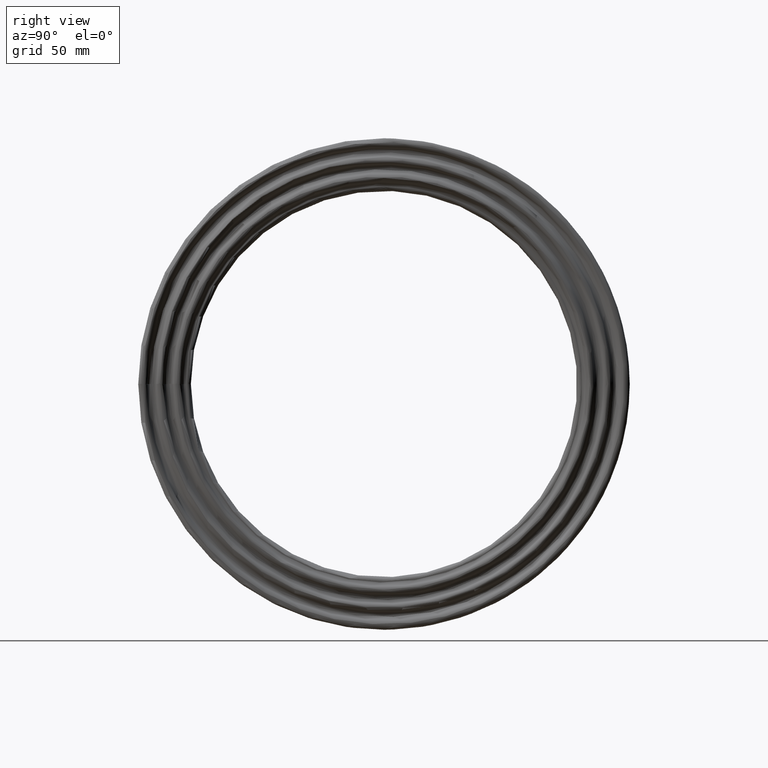
[diagram: clean part render]
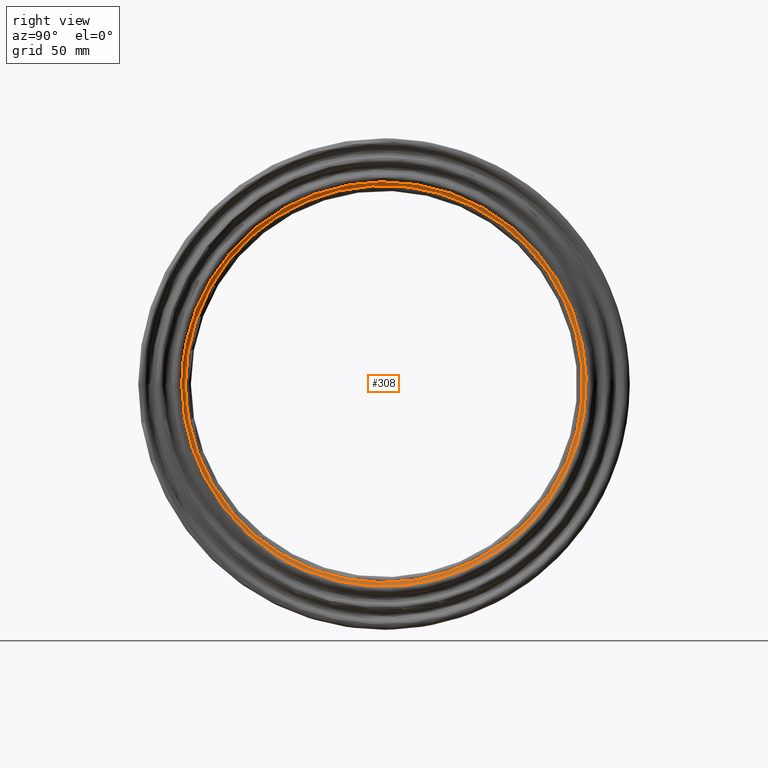
[diagram: same view with one face highlighted and labeled with its STEP entity id]
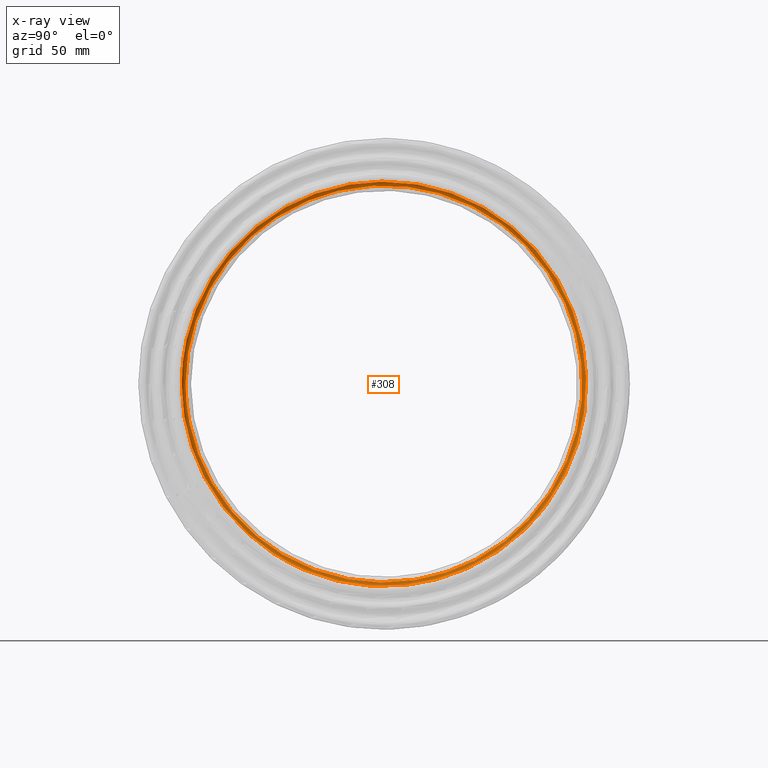
[diagram: x-ray of the same camera — body ghosted, the highlighted face saturated]
A machine part, right view. The second image highlights one B-rep face of the part: STEP entity #308.
The next image is the same camera in x-ray: the body ghosted, the highlighted face saturated — about 0% of this face is hidden behind the body in this view.
In plain terms, the highlighted face is a freeform B-spline surface patch.
Its self-contained STEP definition (entity closure, byte-faithful):
#15=B_SPLINE_SURFACE_WITH_KNOTS('',3,3,((#544,#545,#546,#547,#548,#549,
#550,#551,#552,#553,#554,#555,#556,#557,#558,#559,#560,#561,#562,#563,#564,
#565,#566,#567,#568,#569,#570,#571,#572,#573,#574,#575,#576,#577,#578,#579,
#580,#581,#582,#583,#584,#585,#586,#587,#588,#589,#590,#591,#592,#593,#594,
#595,#596,#597,#598,#599,#600,#601),(#602,#603,#604,#605,#606,#607,#608,
#609,#610,#611,#612,#613,#614,#615,#616,#617,#618,#619,#620,#621,#622,#623,
#624,#625,#626,#627,#628,#629,#630,#631,#632,#633,#634,#635,#636,#637,#638,
#639,#640,#641,#642,#643,#644,#645,#646,#647,#648,#649,#650,#651,#652,#653,
#654,#655,#656,#657,#658,#659),(#660,#661,#662,#663,#664,#665,#666,#667,
#668,#669,#670,#671,#672,#673,#674,#675,#676,#677,#678,#679,#680,#681,#682,
#683,#684,#685,#686,#687,#688,#689,#690,#691,#692,#693,#694,#695,#696,#697,
#698,#699,#700,#701,#702,#703,#704,#705,#706,#707,#708,#709,#710,#711,#712,
#713,#714,#715,#716,#717),(#718,#719,#720,#721,#722,#723,#724,#725,#726,
#727,#728,#729,#730,#731,#732,#733,#734,#735,#736,#737,#738,#739,#740,#741,
#742,#743,#744,#745,#746,#747,#748,#749,#750,#751,#752,#753,#754,#755,#756,
#757,#758,#759,#760,#761,#762,#763,#764,#765,#766,#767,#768,#769,#770,#771,
#772,#773,#774,#775),(#776,#777,#778,#779,#780,#781,#782,#783,#784,#785,
#786,#787,#788,#789,#790,#791,#792,#793,#794,#795,#796,#797,#798,#799,#800,
#801,#802,#803,#804,#805,#806,#807,#808,#809,#810,#811,#812,#813,#814,#815,
#816,#817,#818,#819,#820,#821,#822,#823,#824,#825,#826,#827,#828,#829,#830,
#831,#832,#833)),.UNSPECIFIED.,.F.,.T.,.F.,(4,1,4),(4,1,1,1,1,1,1,1,1,1,
1,1,1,1,1,1,1,1,1,1,1,1,1,1,1,1,1,1,1,1,1,1,1,1,1,1,1,1,1,1,1,1,1,1,1,1,
1,1,1,1,1,1,1,1,1,4),(0.,0.571428571428571,1.),(34.3046376185448,35.5298032477785,
36.7549688770123,37.980134506246,39.2053001354798,41.6556313939473,42.880797023181,
44.1059626524147,45.7395168247264,47.3730709970381,50.6401793416614,51.5590535635867,
52.273733513973,53.9072876862847,54.7240647724405,55.5408418585964,58.8079502032197,
60.4415043755313,62.075058547843,63.7086127201546,64.3211955347715,66.9757210647779,
68.4050809655506,69.0176637801675,70.2428294094013,71.8763835817129,73.5099377540246,
74.4288119759499,75.5008319015294,75.9602690124921,78.4106002709595,80.860931529427,
81.3203686403897,82.0860971586608,83.3112627878945,84.5364284171283,85.761594046362,
86.2210311573247,86.6804682682873,88.2119253048295,89.4370909340632,90.662256563297,
91.2748393779139,92.1937135998392,93.1125878217645,93.6485977845542,94.3377534509982,
95.562919080232,96.4817933021573,98.0132503386994,98.3195417460079,99.2384159679332,
100.463581597167,101.688747226401,101.995038633709,102.913912855634),
 .UNSPECIFIED.);
#24=B_SPLINE_CURVE_WITH_KNOTS('',3,(#483,#484,#485,#486,#487,#488,#489,
#490,#491,#492,#493,#494,#495,#496,#497,#498,#499,#500,#501,#502,#503,#504,
#505,#506,#507,#508,#509,#510,#511,#512,#513,#514,#515,#516,#517,#518,#519,
#520,#521,#522,#523,#524,#525,#526,#527,#528,#529,#530,#531,#532,#533,#534,
#535,#536,#537,#538,#539,#540),.UNSPECIFIED.,.T.,.F.,(4,1,1,1,1,1,1,1,1,
1,1,1,1,1,1,1,1,1,1,1,1,1,1,1,1,1,1,1,1,1,1,1,1,1,1,1,1,1,1,1,1,1,1,1,1,
1,1,1,1,1,1,1,1,1,1,4),(-102.913912855634,-101.995038633709,-101.688747226401,
-100.463581597167,-99.2384159679332,-98.3195417460079,-98.0132503386994,
-96.4817933021573,-95.562919080232,-94.3377534509982,-93.6485977845542,
-93.1125878217645,-92.1937135998392,-91.2748393779139,-90.662256563297,
-89.4370909340632,-88.2119253048295,-86.6804682682873,-86.2210311573247,
-85.761594046362,-84.5364284171283,-83.3112627878945,-82.0860971586608,
-81.3203686403897,-80.860931529427,-78.4106002709595,-75.9602690124921,
-75.5008319015294,-74.4288119759499,-73.5099377540246,-71.8763835817129,
-70.2428294094013,-69.0176637801675,-68.4050809655506,-66.9757210647779,
-64.3211955347715,-63.7086127201546,-62.075058547843,-60.4415043755313,
-58.8079502032197,-55.5408418585964,-54.7240647724405,-53.9072876862847,
-52.273733513973,-51.5590535635867,-50.6401793416614,-47.3730709970381,
-45.7395168247264,-44.1059626524147,-42.880797023181,-41.6556313939473,
-39.2053001354798,-37.980134506246,-36.7549688770123,-35.5298032477785,
-34.3046376185448),.UNSPECIFIED.);
#25=B_SPLINE_CURVE_WITH_KNOTS('',3,(#836,#837,#838,#839,#840,#841,#842,
#843,#844,#845,#846,#847,#848,#849,#850,#851,#852,#853,#854,#855,#856,#857,
#858,#859,#860,#861,#862,#863,#864,#865,#866,#867,#868,#869,#870,#871,#872,
#873,#874,#875,#876,#877,#878,#879,#880,#881,#882,#883,#884,#885,#886,#887,
#888,#889,#890,#891,#892,#893),.UNSPECIFIED.,.T.,.F.,(4,1,1,1,1,1,1,1,1,
1,1,1,1,1,1,1,1,1,1,1,1,1,1,1,1,1,1,1,1,1,1,1,1,1,1,1,1,1,1,1,1,1,1,1,1,
1,1,1,1,1,1,1,1,1,1,4),(34.3046376185448,35.5298032477785,36.7549688770123,
37.980134506246,39.2053001354798,41.6556313939473,42.880797023181,44.1059626524147,
45.7395168247264,47.3730709970381,50.6401793416614,51.5590535635867,52.273733513973,
53.9072876862847,54.7240647724405,55.5408418585964,58.8079502032197,60.4415043755313,
62.075058547843,63.7086127201546,64.3211955347715,66.9757210647779,68.4050809655506,
69.0176637801675,70.2428294094013,71.8763835817129,73.5099377540246,74.4288119759499,
75.5008319015294,75.9602690124921,78.4106002709595,80.860931529427,81.3203686403897,
82.0860971586608,83.3112627878945,84.5364284171283,85.761594046362,86.2210311573247,
86.6804682682873,88.2119253048295,89.4370909340632,90.662256563297,91.2748393779139,
92.1937135998392,93.1125878217645,93.6485977845542,94.3377534509982,95.562919080232,
96.4817933021573,98.0132503386994,98.3195417460079,99.2384159679332,100.463581597167,
101.688747226401,101.995038633709,102.913912855634),.UNSPECIFIED.);
#69=FACE_OUTER_BOUND('',#100,.T.);
#100=EDGE_LOOP('',(#235,#236,#237,#238));
#148=CIRCLE('',#341,2.25000000000002);
#170=VERTEX_POINT('',#482);
#172=VERTEX_POINT('',#834);
#198=EDGE_CURVE('',#170,#170,#24,.T.);
#200=EDGE_CURVE('',#172,#170,#148,.T.);
#201=EDGE_CURVE('',#172,#172,#25,.T.);
#235=ORIENTED_EDGE('',*,*,#200,.T.);
#236=ORIENTED_EDGE('',*,*,#198,.T.);
#237=ORIENTED_EDGE('',*,*,#200,.F.);
#238=ORIENTED_EDGE('',*,*,#201,.T.);
#308=ADVANCED_FACE('',(#69),#15,.T.);
#341=AXIS2_PLACEMENT_3D('',#835,#395,#396);
#395=DIRECTION('center_axis',(0.,0.000811828910617715,-0.999999670466856));
#396=DIRECTION('ref_axis',(-0.399999999999996,-0.916514836969054,-0.000744053486851846));
#482=CARTESIAN_POINT('',(123.3,-109.854812340393,-0.0891833420179113));
#483=CARTESIAN_POINT('Ctrl Pts',(123.3,-109.854811941097,-0.0904479000851988));
#484=CARTESIAN_POINT('Ctrl Pts',(123.3,-109.857573936137,2.97967992967671));
#485=CARTESIAN_POINT('Ctrl Pts',(123.3,-109.689760339099,7.06196202716866));
#486=CARTESIAN_POINT('Ctrl Pts',(123.3,-108.894425085622,15.2419377805893));
#487=CARTESIAN_POINT('Ctrl Pts',(123.3,-107.349674859573,24.4009053369714));
#488=CARTESIAN_POINT('Ctrl Pts',(123.3,-104.210047423107,35.3202140188275));
#489=CARTESIAN_POINT('Ctrl Pts',(123.3,-101.182939729369,42.9371943143522));
#490=CARTESIAN_POINT('Ctrl Pts',(123.3,-97.3177867406005,51.2823919702628));
#491=CARTESIAN_POINT('Ctrl Pts',(123.3,-92.7191585846667,59.3595667878845));
#492=CARTESIAN_POINT('Ctrl Pts',(123.3,-85.4171415848674,69.3637862395294));
#493=CARTESIAN_POINT('Ctrl Pts',(123.3,-79.0752152146508,76.463732362517));
#494=CARTESIAN_POINT('Ctrl Pts',(123.3,-73.1243140751712,82.057754592128));
#495=CARTESIAN_POINT('Ctrl Pts',(123.3,-67.6184158209391,86.6850989933336));
#496=CARTESIAN_POINT('Ctrl Pts',(123.3,-61.1700396767356,91.4050135817242));
#497=CARTESIAN_POINT('Ctrl Pts',(123.3,-54.1248547829257,95.702668937154));
#498=CARTESIAN_POINT('Ctrl Pts',(123.3,-45.887334624863,99.9586206745531));
#499=CARTESIAN_POINT('Ctrl Pts',(123.3,-36.4528560762268,103.873015439453));
#500=CARTESIAN_POINT('Ctrl Pts',(123.3,-23.5851269432595,107.596521951373));
#501=CARTESIAN_POINT('Ctrl Pts',(123.3,-12.8545884739067,109.269124864219));
#502=CARTESIAN_POINT('Ctrl Pts',(123.3,-4.64632040915654,109.788732884036));
#503=CARTESIAN_POINT('Ctrl Pts',(123.3,2.50727129177857,109.941299553081));
#504=CARTESIAN_POINT('Ctrl Pts',(123.3,12.2351899406182,109.404371095186));
#505=CARTESIAN_POINT('Ctrl Pts',(123.3,24.4624377153808,107.335208025284));
#506=CARTESIAN_POINT('Ctrl Pts',(123.3,34.873123156374,104.337882455918));
#507=CARTESIAN_POINT('Ctrl Pts',(123.3,42.5049569413664,101.358167752123));
#508=CARTESIAN_POINT('Ctrl Pts',(123.3,53.6702293721673,96.2903677776936));
#509=CARTESIAN_POINT('Ctrl Pts',(123.299999999999,69.1197708548517,86.5743606295929));
#510=CARTESIAN_POINT('Ctrl Pts',(123.3,81.8138194202239,73.8673438502232));
#511=CARTESIAN_POINT('Ctrl Pts',(123.3,89.9479795633917,63.2362780186549));
#512=CARTESIAN_POINT('Ctrl Pts',(123.3,94.492931757972,56.3292082953483));
#513=CARTESIAN_POINT('Ctrl Pts',(123.3,100.227718545814,45.5888827007721));
#514=CARTESIAN_POINT('Ctrl Pts',(123.3,105.344970426596,32.5692760215007));
#515=CARTESIAN_POINT('Ctrl Pts',(123.3,108.736845678302,17.7544536549384));
#516=CARTESIAN_POINT('Ctrl Pts',(123.3,109.816543429733,6.134043199792));
#517=CARTESIAN_POINT('Ctrl Pts',(123.3,109.917792361706,-4.77081380518972));
#518=CARTESIAN_POINT('Ctrl Pts',(123.3,108.606473804927,-20.4402608890126));
#519=CARTESIAN_POINT('Ctrl Pts',(123.3,104.386731991293,-35.6773893686254));
#520=CARTESIAN_POINT('Ctrl Pts',(123.3,97.7259403621073,-50.6186250265016));
#521=CARTESIAN_POINT('Ctrl Pts',(123.3,91.2386752504998,-61.9380171074263));
#522=CARTESIAN_POINT('Ctrl Pts',(123.3,80.9084060824622,-74.9031887555224));
#523=CARTESIAN_POINT('Ctrl Pts',(123.3,64.9433855410698,-89.7919487763793));
#524=CARTESIAN_POINT('Ctrl Pts',(123.3,48.0192279161798,-99.6127344379042));
#525=CARTESIAN_POINT('Ctrl Pts',(123.3,32.6006249846895,-105.005543569886));
#526=CARTESIAN_POINT('Ctrl Pts',(123.3,22.0028290851455,-107.879388526297));
#527=CARTESIAN_POINT('Ctrl Pts',(123.3,11.4308511310198,-109.485827142088));
#528=CARTESIAN_POINT('Ctrl Pts',(123.3,0.469788577131319,-109.951088400426));
#529=CARTESIAN_POINT('Ctrl Pts',(123.299999999999,-15.8661809675752,-109.46429133572));
#530=CARTESIAN_POINT('Ctrl Pts',(123.300000000001,-35.284122560751,-105.049903667902));
#531=CARTESIAN_POINT('Ctrl Pts',(123.299999999999,-54.94827935188,-95.5860665226581));
#532=CARTESIAN_POINT('Ctrl Pts',(123.300000000001,-67.5425333362314,-87.0559186727637));
#533=CARTESIAN_POINT('Ctrl Pts',(123.3,-77.7618347085691,-77.9095728569074));
#534=CARTESIAN_POINT('Ctrl Pts',(123.3,-88.6974014117573,-65.7333984186391));
#535=CARTESIAN_POINT('Ctrl Pts',(123.3,-97.588512645567,-51.6133133240819));
#536=CARTESIAN_POINT('Ctrl Pts',(123.3,-103.857893054987,-36.4858302373939));
#537=CARTESIAN_POINT('Ctrl Pts',(123.3,-107.296250107433,-24.6415375880149));
#538=CARTESIAN_POINT('Ctrl Pts',(123.3,-109.386440608688,-12.4008836871966));
#539=CARTESIAN_POINT('Ctrl Pts',(123.299999999999,-109.851129281043,-4.18395167310108));
#540=CARTESIAN_POINT('Ctrl Pts',(123.3,-109.854811941097,-0.0904479000852007));
#544=CARTESIAN_POINT('Ctrl Pts',(123.3,-109.854811941097,-0.0904479000852007));
#545=CARTESIAN_POINT('Ctrl Pts',(123.299999999999,-109.851129281043,-4.18395167310108));
#546=CARTESIAN_POINT('Ctrl Pts',(123.3,-109.386440608688,-12.4008836871966));
#547=CARTESIAN_POINT('Ctrl Pts',(123.3,-107.296250107433,-24.6415375880149));
#548=CARTESIAN_POINT('Ctrl Pts',(123.3,-103.857893054987,-36.4858302373939));
#549=CARTESIAN_POINT('Ctrl Pts',(123.3,-97.588512645567,-51.6133133240819));
#550=CARTESIAN_POINT('Ctrl Pts',(123.3,-88.6974014117573,-65.7333984186391));
#551=CARTESIAN_POINT('Ctrl Pts',(123.3,-77.7618347085691,-77.9095728569074));
#552=CARTESIAN_POINT('Ctrl Pts',(123.300000000001,-67.5425333362314,-87.0559186727637));
#553=CARTESIAN_POINT('Ctrl Pts',(123.299999999999,-54.94827935188,-95.5860665226581));
#554=CARTESIAN_POINT('Ctrl Pts',(123.300000000001,-35.284122560751,-105.049903667902));
#555=CARTESIAN_POINT('Ctrl Pts',(123.299999999999,-15.8661809675752,-109.46429133572));
#556=CARTESIAN_POINT('Ctrl Pts',(123.3,0.469788577131319,-109.951088400426));
#557=CARTESIAN_POINT('Ctrl Pts',(123.3,11.4308511310198,-109.485827142088));
#558=CARTESIAN_POINT('Ctrl Pts',(123.3,22.0028290851455,-107.879388526297));
#559=CARTESIAN_POINT('Ctrl Pts',(123.3,32.6006249846895,-105.005543569886));
#560=CARTESIAN_POINT('Ctrl Pts',(123.3,48.0192279161798,-99.6127344379042));
#561=CARTESIAN_POINT('Ctrl Pts',(123.3,64.9433855410698,-89.7919487763793));
#562=CARTESIAN_POINT('Ctrl Pts',(123.3,80.9084060824622,-74.9031887555224));
#563=CARTESIAN_POINT('Ctrl Pts',(123.3,91.2386752504998,-61.9380171074263));
#564=CARTESIAN_POINT('Ctrl Pts',(123.3,97.7259403621073,-50.6186250265016));
#565=CARTESIAN_POINT('Ctrl Pts',(123.3,104.386731991293,-35.6773893686254));
#566=CARTESIAN_POINT('Ctrl Pts',(123.3,108.606473804927,-20.4402608890126));
#567=CARTESIAN_POINT('Ctrl Pts',(123.3,109.917792361706,-4.77081380518972));
#568=CARTESIAN_POINT('Ctrl Pts',(123.3,109.816543429733,6.134043199792));
#569=CARTESIAN_POINT('Ctrl Pts',(123.3,108.736845678302,17.7544536549384));
#570=CARTESIAN_POINT('Ctrl Pts',(123.3,105.344970426596,32.5692760215007));
#571=CARTESIAN_POINT('Ctrl Pts',(123.3,100.227718545814,45.5888827007721));
#572=CARTESIAN_POINT('Ctrl Pts',(123.3,94.492931757972,56.3292082953483));
#573=CARTESIAN_POINT('Ctrl Pts',(123.3,89.9479795633917,63.2362780186549));
#574=CARTESIAN_POINT('Ctrl Pts',(123.3,81.8138194202239,73.8673438502232));
#575=CARTESIAN_POINT('Ctrl Pts',(123.299999999999,69.1197708548517,86.5743606295929));
#576=CARTESIAN_POINT('Ctrl Pts',(123.3,53.6702293721673,96.2903677776936));
#577=CARTESIAN_POINT('Ctrl Pts',(123.3,42.5049569413664,101.358167752123));
#578=CARTESIAN_POINT('Ctrl Pts',(123.3,34.873123156374,104.337882455918));
#579=CARTESIAN_POINT('Ctrl Pts',(123.3,24.4624377153808,107.335208025284));
#580=CARTESIAN_POINT('Ctrl Pts',(123.3,12.2351899406182,109.404371095186));
#581=CARTESIAN_POINT('Ctrl Pts',(123.3,2.50727129177857,109.941299553081));
#582=CARTESIAN_POINT('Ctrl Pts',(123.3,-4.64632040915654,109.788732884036));
#583=CARTESIAN_POINT('Ctrl Pts',(123.3,-12.8545884739067,109.269124864219));
#584=CARTESIAN_POINT('Ctrl Pts',(123.3,-23.5851269432595,107.596521951373));
#585=CARTESIAN_POINT('Ctrl Pts',(123.3,-36.4528560762268,103.873015439453));
#586=CARTESIAN_POINT('Ctrl Pts',(123.3,-45.887334624863,99.9586206745531));
#587=CARTESIAN_POINT('Ctrl Pts',(123.3,-54.1248547829257,95.702668937154));
#588=CARTESIAN_POINT('Ctrl Pts',(123.3,-61.1700396767356,91.4050135817242));
#589=CARTESIAN_POINT('Ctrl Pts',(123.3,-67.6184158209391,86.6850989933336));
#590=CARTESIAN_POINT('Ctrl Pts',(123.3,-73.1243140751712,82.057754592128));
#591=CARTESIAN_POINT('Ctrl Pts',(123.3,-79.0752152146508,76.463732362517));
#592=CARTESIAN_POINT('Ctrl Pts',(123.3,-85.4171415848674,69.3637862395294));
#593=CARTESIAN_POINT('Ctrl Pts',(123.3,-92.7191585846667,59.3595667878845));
#594=CARTESIAN_POINT('Ctrl Pts',(123.3,-97.3177867406005,51.2823919702628));
#595=CARTESIAN_POINT('Ctrl Pts',(123.3,-101.182939729369,42.9371943143522));
#596=CARTESIAN_POINT('Ctrl Pts',(123.3,-104.210047423107,35.3202140188275));
#597=CARTESIAN_POINT('Ctrl Pts',(123.3,-107.349674859573,24.4009053369714));
#598=CARTESIAN_POINT('Ctrl Pts',(123.3,-108.894425085622,15.2419377805893));
#599=CARTESIAN_POINT('Ctrl Pts',(123.3,-109.689760339099,7.06196202716866));
#600=CARTESIAN_POINT('Ctrl Pts',(123.3,-109.857573936137,2.97967992967671));
#601=CARTESIAN_POINT('Ctrl Pts',(123.3,-109.854811941097,-0.0904479000852007));
#602=CARTESIAN_POINT('Ctrl Pts',(123.3,-110.351646216292,-0.0908578616788142));
#603=CARTESIAN_POINT('Ctrl Pts',(123.299999999999,-110.34794684948,-4.2028748012767));
#604=CARTESIAN_POINT('Ctrl Pts',(123.3,-109.881155693265,-12.4569701418058));
#605=CARTESIAN_POINT('Ctrl Pts',(123.3,-107.781513985707,-24.7529786390655));
#606=CARTESIAN_POINT('Ctrl Pts',(123.3,-104.327605613182,-36.6508419789375));
#607=CARTESIAN_POINT('Ctrl Pts',(123.3,-98.0298690648216,-51.8467446194634));
#608=CARTESIAN_POINT('Ctrl Pts',(123.3,-89.098550405943,-66.0306841749275));
#609=CARTESIAN_POINT('Ctrl Pts',(123.3,-78.1135219718657,-78.2619319904802));
#610=CARTESIAN_POINT('Ctrl Pts',(123.300000000001,-67.8480038407756,-87.4496417411141));
#611=CARTESIAN_POINT('Ctrl Pts',(123.299999999999,-55.1967930632697,-96.0183667456429));
#612=CARTESIAN_POINT('Ctrl Pts',(123.300000000001,-35.4436975389184,-105.525008518294));
#613=CARTESIAN_POINT('Ctrl Pts',(123.299999999999,-15.9379393378755,-109.959358243556));
#614=CARTESIAN_POINT('Ctrl Pts',(123.3,0.471912204440433,-110.448358356206));
#615=CARTESIAN_POINT('Ctrl Pts',(123.3,11.4825540244957,-109.980991665635));
#616=CARTESIAN_POINT('Ctrl Pts',(123.3,22.1023348874627,-108.367289598785));
#617=CARTESIAN_POINT('Ctrl Pts',(123.3,32.7480663240868,-105.480446110224));
#618=CARTESIAN_POINT('Ctrl Pts',(123.3,48.2364025053831,-100.063247074096));
#619=CARTESIAN_POINT('Ctrl Pts',(123.3,65.2371009584727,-90.1980456238609));
#620=CARTESIAN_POINT('Ctrl Pts',(123.3,81.274326073779,-75.2419493944259));
#621=CARTESIAN_POINT('Ctrl Pts',(123.3,91.6513149803497,-62.218140558343));
#622=CARTESIAN_POINT('Ctrl Pts',(123.3,98.1679201668179,-50.8475551703433));
#623=CARTESIAN_POINT('Ctrl Pts',(123.3,104.85883640571,-35.8387430680314));
#624=CARTESIAN_POINT('Ctrl Pts',(123.3,109.097661901624,-20.5327073011749));
#625=CARTESIAN_POINT('Ctrl Pts',(123.3,110.414911186674,-4.79239211034624));
#626=CARTESIAN_POINT('Ctrl Pts',(123.3,110.313204541083,6.16179079083208));
#627=CARTESIAN_POINT('Ctrl Pts',(123.3,109.228623953013,17.8347454582303));
#628=CARTESIAN_POINT('Ctrl Pts',(123.3,105.821408072221,32.7165784411163));
#629=CARTESIAN_POINT('Ctrl Pts',(123.3,100.68101220501,45.7950645845627));
#630=CARTESIAN_POINT('Ctrl Pts',(123.3,94.9202897501354,56.5839654830364));
#631=CARTESIAN_POINT('Ctrl Pts',(123.3,90.3547834359387,63.5222712659075));
#632=CARTESIAN_POINT('Ctrl Pts',(123.3,82.1838338250382,74.2014202164004));
#633=CARTESIAN_POINT('Ctrl Pts',(123.299999999999,69.4323732606917,86.9659064447706));
#634=CARTESIAN_POINT('Ctrl Pts',(123.3,53.9129623871775,96.7258539196493));
#635=CARTESIAN_POINT('Ctrl Pts',(123.3,42.6971913631877,101.816574662504));
#636=CARTESIAN_POINT('Ctrl Pts',(123.3,35.0308390258557,104.809766724071));
#637=CARTESIAN_POINT('Ctrl Pts',(123.3,24.5730735126529,107.820646183491));
#638=CARTESIAN_POINT('Ctrl Pts',(123.3,12.2905271034252,109.899168206294));
#639=CARTESIAN_POINT('Ctrl Pts',(123.3,2.51861126109769,110.438524662431));
#640=CARTESIAN_POINT('Ctrl Pts',(123.3,-4.66733406001232,110.285268225001));
#641=CARTESIAN_POINT('Ctrl Pts',(123.3,-12.9127327652421,109.763309431325));
#642=CARTESIAN_POINT('Ctrl Pts',(123.3,-23.6917909108014,108.083142727928));
#643=CARTESIAN_POINT('Ctrl Pts',(123.3,-36.6177169217908,104.342797319969));
#644=CARTESIAN_POINT('Ctrl Pts',(123.3,-46.0948678186146,100.410697177974));
#645=CARTESIAN_POINT('Ctrl Pts',(123.3,-54.3696432787265,96.1354975523231));
#646=CARTESIAN_POINT('Ctrl Pts',(123.3,-61.44668850386,91.8184065134365));
#647=CARTESIAN_POINT('Ctrl Pts',(123.3,-67.9242290819501,87.0771455250552));
#648=CARTESIAN_POINT('Ctrl Pts',(123.3,-73.4550274030187,82.4288742488403));
#649=CARTESIAN_POINT('Ctrl Pts',(123.3,-79.4328493015579,76.8095451706471));
#650=CARTESIAN_POINT('Ctrl Pts',(123.3,-85.803449848379,69.6774979611546));
#651=CARTESIAN_POINT('Ctrl Pts',(123.3,-93.1384975389056,59.6280232700158));
#652=CARTESIAN_POINT('Ctrl Pts',(123.3,-97.7579176698518,51.5143304720705));
#653=CARTESIAN_POINT('Ctrl Pts',(123.3,-101.640554787923,43.1313815847463));
#654=CARTESIAN_POINT('Ctrl Pts',(123.3,-104.681352361132,35.4799559602313));
#655=CARTESIAN_POINT('Ctrl Pts',(123.3,-107.835179207771,24.5112594053031));
#656=CARTESIAN_POINT('Ctrl Pts',(123.3,-109.386915462189,15.310875725437));
#657=CARTESIAN_POINT('Ctrl Pts',(123.3,-110.185847949743,7.09389873461747));
#658=CARTESIAN_POINT('Ctrl Pts',(123.3,-110.354420741402,2.9931548430196));
#659=CARTESIAN_POINT('Ctrl Pts',(123.3,-110.351646216292,-0.0908578616788142));
#660=CARTESIAN_POINT('Ctrl Pts',(123.599206336202,-111.218219908409,-0.0915702257909933));
#661=CARTESIAN_POINT('Ctrl Pts',(123.599206336202,-111.214491555635,-4.23587854388431));
#662=CARTESIAN_POINT('Ctrl Pts',(123.599206336202,-110.74403584682,-12.5547906293297));
#663=CARTESIAN_POINT('Ctrl Pts',(123.599206336203,-108.627903500626,-24.9473646484866));
#664=CARTESIAN_POINT('Ctrl Pts',(123.599206336202,-105.146873213998,-36.9386560166107));
#665=CARTESIAN_POINT('Ctrl Pts',(123.599206336202,-98.7996840170612,-52.2538854557698));
#666=CARTESIAN_POINT('Ctrl Pts',(123.599206336202,-89.7982242382569,-66.5492163209626));
#667=CARTESIAN_POINT('Ctrl Pts',(123.599206336202,-78.7269372330594,-78.8765080393015));
#668=CARTESIAN_POINT('Ctrl Pts',(123.599206336202,-68.3808037459177,-88.1363695760369));
#669=CARTESIAN_POINT('Ctrl Pts',(123.599206336202,-55.6302418556485,-96.7723854984665));
#670=CARTESIAN_POINT('Ctrl Pts',(123.599206336203,-35.7220344109218,-106.35367755847));
#671=CARTESIAN_POINT('Ctrl Pts',(123.599206336202,-16.0630958084943,-110.82285284572));
#672=CARTESIAN_POINT('Ctrl Pts',(123.599206336202,0.475619385966196,-111.315691191083));
#673=CARTESIAN_POINT('Ctrl Pts',(123.599206336202,11.5727181175999,-110.844655879065));
#674=CARTESIAN_POINT('Ctrl Pts',(123.599206336202,22.2759074618509,-109.218279283056));
#675=CARTESIAN_POINT('Ctrl Pts',(123.599206336202,33.0052312365827,-106.308767326015));
#676=CARTESIAN_POINT('Ctrl Pts',(123.599206336202,48.6151943380788,-100.849028080986));
#677=CARTESIAN_POINT('Ctrl Pts',(123.599206336202,65.7493979461551,-90.9063566243885));
#678=CARTESIAN_POINT('Ctrl Pts',(123.599206336202,81.9125602282434,-75.8328121270286));
#679=CARTESIAN_POINT('Ctrl Pts',(123.599206336202,92.3710384560251,-62.7067298263666));
#680=CARTESIAN_POINT('Ctrl Pts',(123.599206336202,98.9388168895084,-51.2468527112583));
#681=CARTESIAN_POINT('Ctrl Pts',(123.599206336202,105.682275543592,-36.1201820241486));
#682=CARTESIAN_POINT('Ctrl Pts',(123.599206336202,109.954388745398,-20.6939443572404));
#683=CARTESIAN_POINT('Ctrl Pts',(123.599206336202,111.28198205059,-4.83002397085552));
#684=CARTESIAN_POINT('Ctrl Pts',(123.599206336202,111.179476468693,6.21017143918566));
#685=CARTESIAN_POINT('Ctrl Pts',(123.599206336202,110.086378526726,17.974805474702));
#686=CARTESIAN_POINT('Ctrl Pts',(123.599206336202,106.65240680956,32.9734924907097));
#687=CARTESIAN_POINT('Ctrl Pts',(123.599206336202,101.471644838463,46.1546863882055));
#688=CARTESIAN_POINT('Ctrl Pts',(123.599206336202,95.6656834344281,57.0283099975511));
#689=CARTESIAN_POINT('Ctrl Pts',(123.599206336202,91.064323573106,64.0211038939207));
#690=CARTESIAN_POINT('Ctrl Pts',(123.599206336203,82.8292107617158,74.7841112309128));
#691=CARTESIAN_POINT('Ctrl Pts',(123.599206336202,69.9776167016494,87.6488347517808));
#692=CARTESIAN_POINT('Ctrl Pts',(123.599206336203,54.3363301306577,97.4854276829828));
#693=CARTESIAN_POINT('Ctrl Pts',(123.599206336202,43.0324860195934,102.616123891983));
#694=CARTESIAN_POINT('Ctrl Pts',(123.599206336202,35.3059341689685,105.632819542172));
#695=CARTESIAN_POINT('Ctrl Pts',(123.599206336203,24.7660407869496,108.667345400453));
#696=CARTESIAN_POINT('Ctrl Pts',(123.599206336202,12.3870404374119,110.762188636669));
#697=CARTESIAN_POINT('Ctrl Pts',(123.599206336203,2.53838891606765,111.305780997222));
#698=CARTESIAN_POINT('Ctrl Pts',(123.599206336202,-4.70398588865796,111.151320764643));
#699=CARTESIAN_POINT('Ctrl Pts',(123.599206336202,-13.0141248819336,110.625264081861));
#700=CARTESIAN_POINT('Ctrl Pts',(123.599206336203,-23.8778427216619,108.931902297557));
#701=CARTESIAN_POINT('Ctrl Pts',(123.599206336202,-36.9052730518499,105.162183051497));
#702=CARTESIAN_POINT('Ctrl Pts',(123.599206336203,-46.4568420216754,101.199207224023));
#703=CARTESIAN_POINT('Ctrl Pts',(123.599206336202,-54.7965980530935,96.8904348067862));
#704=CARTESIAN_POINT('Ctrl Pts',(123.599206336202,-61.9292213601632,92.5394409853428));
#705=CARTESIAN_POINT('Ctrl Pts',(123.599206336203,-68.45762811567,87.7609475175053));
#706=CARTESIAN_POINT('Ctrl Pts',(123.599206336202,-74.0318603547545,83.0761729109488));
#707=CARTESIAN_POINT('Ctrl Pts',(123.599206336203,-80.0566163962976,77.4127250343972));
#708=CARTESIAN_POINT('Ctrl Pts',(123.599206336202,-86.4772544219655,70.224659139563));
#709=CARTESIAN_POINT('Ctrl Pts',(123.599206336202,-93.8698951917521,60.0962797424161));
#710=CARTESIAN_POINT('Ctrl Pts',(123.599206336202,-98.5255984047062,51.9188560816997));
#711=CARTESIAN_POINT('Ctrl Pts',(123.599206336202,-102.438720954825,43.4700883890002));
#712=CARTESIAN_POINT('Ctrl Pts',(123.599206336202,-105.503398241512,35.7585728721668));
#713=CARTESIAN_POINT('Ctrl Pts',(123.599206336203,-108.681991593363,24.70374558495));
#714=CARTESIAN_POINT('Ctrl Pts',(123.599206336202,-110.245913794494,15.4311044430352));
#715=CARTESIAN_POINT('Ctrl Pts',(123.599206336203,-111.051119899539,7.14960853740027));
#716=CARTESIAN_POINT('Ctrl Pts',(123.599206336202,-111.22101617299,3.01666101277899));
#717=CARTESIAN_POINT('Ctrl Pts',(123.599206336202,-111.218219908409,-0.0915702257909933));
#718=CARTESIAN_POINT('Ctrl Pts',(124.308483044654,-111.767920435276,-0.0920237239131843));
#719=CARTESIAN_POINT('Ctrl Pts',(124.308483044654,-111.764173602959,-4.25681515281312));
#720=CARTESIAN_POINT('Ctrl Pts',(124.308483044655,-111.291391775456,-12.616844871636));
#721=CARTESIAN_POINT('Ctrl Pts',(124.308483044654,-109.164802366191,-25.0706640893374));
#722=CARTESIAN_POINT('Ctrl Pts',(124.308483044655,-105.666566084108,-37.121226099237));
#723=CARTESIAN_POINT('Ctrl Pts',(124.308483044654,-99.2880036664988,-52.5121550394823));
#724=CARTESIAN_POINT('Ctrl Pts',(124.308483044655,-90.2420577686222,-66.8781354189529));
#725=CARTESIAN_POINT('Ctrl Pts',(124.308483044654,-79.1160463847558,-79.2663601980415));
#726=CARTESIAN_POINT('Ctrl Pts',(124.308483044655,-68.718778244292,-88.5719872152762));
#727=CARTESIAN_POINT('Ctrl Pts',(124.308483044654,-55.9051987611617,-97.2506853011988));
#728=CARTESIAN_POINT('Ctrl Pts',(124.308483044654,-35.8985894034328,-106.879336374345));
#729=CARTESIAN_POINT('Ctrl Pts',(124.308483044655,-16.142489593184,-111.370598059434));
#730=CARTESIAN_POINT('Ctrl Pts',(124.308483044654,0.47796908180151,-111.865873733117));
#731=CARTESIAN_POINT('Ctrl Pts',(124.308483044654,11.6299220207713,-111.392509074648));
#732=CARTESIAN_POINT('Ctrl Pts',(124.308483044655,22.3860017945682,-109.758095969462));
#733=CARTESIAN_POINT('Ctrl Pts',(124.308483044654,33.1683612214284,-106.834202466058));
#734=CARTESIAN_POINT('Ctrl Pts',(124.308483044655,48.855477586336,-101.347478093516));
#735=CARTESIAN_POINT('Ctrl Pts',(124.308483044654,66.074366549382,-91.3556647196135));
#736=CARTESIAN_POINT('Ctrl Pts',(124.308483044655,82.3174163763822,-76.2076189883595));
#737=CARTESIAN_POINT('Ctrl Pts',(124.308483044654,92.827585651029,-63.016660169851));
#738=CARTESIAN_POINT('Ctrl Pts',(124.308483044655,99.4278260795554,-51.5001424350754));
#739=CARTESIAN_POINT('Ctrl Pts',(124.308483044654,106.204614768167,-36.2987049938544));
#740=CARTESIAN_POINT('Ctrl Pts',(124.308483044655,110.49784234252,-20.7962274142522));
#741=CARTESIAN_POINT('Ctrl Pts',(124.308483044654,111.831997432682,-4.85389818760223));
#742=CARTESIAN_POINT('Ctrl Pts',(124.308483044655,111.72898541452,6.24087102044788));
#743=CARTESIAN_POINT('Ctrl Pts',(124.308483044654,110.630485047603,18.0636413298121));
#744=CARTESIAN_POINT('Ctrl Pts',(124.308483044655,107.179540399794,33.1364685000932));
#745=CARTESIAN_POINT('Ctrl Pts',(124.308483044654,101.973171823843,46.3828073459071));
#746=CARTESIAN_POINT('Ctrl Pts',(124.308483044654,96.1385149663697,57.310174912979));
#747=CARTESIAN_POINT('Ctrl Pts',(124.308483044655,91.514413795742,64.3375287865234));
#748=CARTESIAN_POINT('Ctrl Pts',(124.308483044654,83.2385970373668,75.153735337335));
#749=CARTESIAN_POINT('Ctrl Pts',(124.308483044655,70.3234821123036,88.0820434011654));
#750=CARTESIAN_POINT('Ctrl Pts',(124.308483044654,54.6048912885759,97.9672523474195));
#751=CARTESIAN_POINT('Ctrl Pts',(124.308483044655,43.2451754151083,103.123308149818));
#752=CARTESIAN_POINT('Ctrl Pts',(124.308483044654,35.4804322612219,106.154915120634));
#753=CARTESIAN_POINT('Ctrl Pts',(124.308483044655,24.8884488353059,109.204437273486));
#754=CARTESIAN_POINT('Ctrl Pts',(124.308483044654,12.4482656507557,111.309635230647));
#755=CARTESIAN_POINT('Ctrl Pts',(124.308483044654,2.55093548333246,111.855913975912));
#756=CARTESIAN_POINT('Ctrl Pts',(124.308483044654,-4.7272355229327,111.700690556681));
#757=CARTESIAN_POINT('Ctrl Pts',(124.308483044654,-13.0784553637631,111.172033036935));
#758=CARTESIAN_POINT('Ctrl Pts',(124.308483044654,-23.9958567019659,109.470302551428));
#759=CARTESIAN_POINT('Ctrl Pts',(124.308483044655,-37.0876763511976,105.68195253133));
#760=CARTESIAN_POINT('Ctrl Pts',(124.308483044654,-46.6864579318335,101.699387552347));
#761=CARTESIAN_POINT('Ctrl Pts',(124.308483044654,-55.067433467859,97.3693191262948));
#762=CARTESIAN_POINT('Ctrl Pts',(124.308483044654,-62.2353074860539,92.9968214402153));
#763=CARTESIAN_POINT('Ctrl Pts',(124.308483044655,-68.795981883371,88.1947101736674));
#764=CARTESIAN_POINT('Ctrl Pts',(124.308483044654,-74.3977638214783,83.4867818508604));
#765=CARTESIAN_POINT('Ctrl Pts',(124.308483044655,-80.4523044930486,77.7953349969134));
#766=CARTESIAN_POINT('Ctrl Pts',(124.308483044654,-86.9046685811944,70.5717513565794));
#767=CARTESIAN_POINT('Ctrl Pts',(124.308483044654,-94.3338541129192,60.3933022107614));
#768=CARTESIAN_POINT('Ctrl Pts',(124.308483044654,-99.0125622689938,52.1754736612489));
#769=CARTESIAN_POINT('Ctrl Pts',(124.308483044654,-102.945029041416,43.6849386204214));
#770=CARTESIAN_POINT('Ctrl Pts',(124.308483044654,-106.024852958234,35.9353122364452));
#771=CARTESIAN_POINT('Ctrl Pts',(124.308483044654,-109.219156626522,24.8258422558629));
#772=CARTESIAN_POINT('Ctrl Pts',(124.308483044654,-110.790808244201,15.5073774230794));
#773=CARTESIAN_POINT('Ctrl Pts',(124.308483044655,-111.599994330753,7.18494370377809));
#774=CARTESIAN_POINT('Ctrl Pts',(124.308483044654,-111.770730559513,3.03156984776177));
#775=CARTESIAN_POINT('Ctrl Pts',(124.308483044654,-111.767920435276,-0.0920237239131843));
#776=CARTESIAN_POINT('Ctrl Pts',(124.65,-111.916970316782,-0.0921457582984945));
#777=CARTESIAN_POINT('Ctrl Pts',(124.649999999999,-111.913218527045,-4.26249143693748));
#778=CARTESIAN_POINT('Ctrl Pts',(124.65,-111.439806871866,-12.6336689945454));
#779=CARTESIAN_POINT('Ctrl Pts',(124.65,-109.310380002419,-25.1041004218953));
#780=CARTESIAN_POINT('Ctrl Pts',(124.65,-105.807479242975,-37.1707302348397));
#781=CARTESIAN_POINT('Ctrl Pts',(124.65,-99.4204120878111,-52.5821814554586));
#782=CARTESIAN_POINT('Ctrl Pts',(124.65,-90.3623998400536,-66.9673241403808));
#783=CARTESIAN_POINT('Ctrl Pts',(124.65,-79.2215542776938,-79.3720657179308));
#784=CARTESIAN_POINT('Ctrl Pts',(124.65,-68.8104195432457,-88.6901037273083));
#785=CARTESIAN_POINT('Ctrl Pts',(124.65,-55.9797503679673,-97.3803767053036));
#786=CARTESIAN_POINT('Ctrl Pts',(124.649999999999,-35.9464644971819,-107.021865886815));
#787=CARTESIAN_POINT('Ctrl Pts',(124.650000000001,-16.1640156950151,-111.519118987124));
#788=CARTESIAN_POINT('Ctrl Pts',(124.65,0.478607293690217,-112.01505404612));
#789=CARTESIAN_POINT('Ctrl Pts',(124.65,11.6454273064691,-111.541059056562));
#790=CARTESIAN_POINT('Ctrl Pts',(124.65,22.4158589514297,-109.904464903765));
#791=CARTESIAN_POINT('Ctrl Pts',(124.65,33.2125931877827,-106.976673075639));
#792=CARTESIAN_POINT('Ctrl Pts',(124.65,48.9206290591208,-101.482631905446));
#793=CARTESIAN_POINT('Ctrl Pts',(124.65,66.1624814010733,-91.477493687581));
#794=CARTESIAN_POINT('Ctrl Pts',(124.65,82.4271920538562,-76.3092467636185));
#795=CARTESIAN_POINT('Ctrl Pts',(124.65,92.9513776349442,-63.1006971802838));
#796=CARTESIAN_POINT('Ctrl Pts',(124.65,99.5604195522176,-51.5688211965157));
#797=CARTESIAN_POINT('Ctrl Pts',(124.65,106.346245369747,-36.3471135801468));
#798=CARTESIAN_POINT('Ctrl Pts',(124.65,110.645198787958,-20.8239587393722));
#799=CARTESIAN_POINT('Ctrl Pts',(124.65,111.981132985119,-4.86036995182879));
#800=CARTESIAN_POINT('Ctrl Pts',(124.65,111.877983441517,6.24918943997714));
#801=CARTESIAN_POINT('Ctrl Pts',(124.65,110.778017959233,18.0877344158201));
#802=CARTESIAN_POINT('Ctrl Pts',(124.65,107.322471541595,33.1806557521741));
#803=CARTESIAN_POINT('Ctrl Pts',(124.65,102.109160292634,46.444662203175));
#804=CARTESIAN_POINT('Ctrl Pts',(124.65,96.2667219745736,57.3866016550878));
#805=CARTESIAN_POINT('Ctrl Pts',(124.65,91.6364534331758,64.42332861807));
#806=CARTESIAN_POINT('Ctrl Pts',(124.65,83.3496015128158,75.2539573186619));
#807=CARTESIAN_POINT('Ctrl Pts',(124.65,70.4172644454846,88.1995060350363));
#808=CARTESIAN_POINT('Ctrl Pts',(124.65,54.6777092546514,98.0978988717069));
#809=CARTESIAN_POINT('Ctrl Pts',(124.65,43.3028460043577,103.260829919405));
#810=CARTESIAN_POINT('Ctrl Pts',(124.65,35.5277499472492,106.296478846972));
#811=CARTESIAN_POINT('Ctrl Pts',(124.65,24.9216385453954,109.350069225483));
#812=CARTESIAN_POINT('Ctrl Pts',(124.65,12.4648648994872,111.458073943555));
#813=CARTESIAN_POINT('Ctrl Pts',(124.65,2.55433696330537,112.005081445754));
#814=CARTESIAN_POINT('Ctrl Pts',(124.65,-4.73353960673704,111.849650845409));
#815=CARTESIAN_POINT('Ctrl Pts',(124.65,-13.0958905781938,111.32028891485));
#816=CARTESIAN_POINT('Ctrl Pts',(124.65,-24.0278591841896,109.616288450592));
#817=CARTESIAN_POINT('Ctrl Pts',(124.65,-37.1371370935711,105.822885499865));
#818=CARTESIAN_POINT('Ctrl Pts',(124.65,-46.7487165685621,101.835011004696));
#819=CARTESIAN_POINT('Ctrl Pts',(124.65,-55.1408687439999,97.4991679419492));
#820=CARTESIAN_POINT('Ctrl Pts',(124.65,-62.3183035300113,93.1208384145792));
#821=CARTESIAN_POINT('Ctrl Pts',(124.65,-68.887726468983,88.3123231428959));
#822=CARTESIAN_POINT('Ctrl Pts',(124.65,-74.4969796332095,83.5981157554859));
#823=CARTESIAN_POINT('Ctrl Pts',(124.65,-80.5595891303917,77.8990843816171));
#824=CARTESIAN_POINT('Ctrl Pts',(124.65,-87.0205640552526,70.6658604066559));
#825=CARTESIAN_POINT('Ctrl Pts',(124.65,-94.4596521150216,60.4738450399316));
#826=CARTESIAN_POINT('Ctrl Pts',(124.65,-99.1446042052542,52.2450481548942));
#827=CARTESIAN_POINT('Ctrl Pts',(124.65,-103.082312573876,43.7431971950566));
#828=CARTESIAN_POINT('Ctrl Pts',(124.65,-106.166244136996,35.9832334522317));
#829=CARTESIAN_POINT('Ctrl Pts',(124.65,-109.364807626424,24.8589511014292));
#830=CARTESIAN_POINT('Ctrl Pts',(124.65,-110.938555395327,15.5280544203662));
#831=CARTESIAN_POINT('Ctrl Pts',(124.65,-111.748820420431,7.19452685419601));
#832=CARTESIAN_POINT('Ctrl Pts',(124.65,-111.919784159084,3.03561350068075));
#833=CARTESIAN_POINT('Ctrl Pts',(124.65,-111.916970316782,-0.0921457582984945));
#834=CARTESIAN_POINT('',(124.65,-111.916970723573,-0.090857462363328));
#835=CARTESIAN_POINT('Origin',(125.55,-109.854812340393,-0.0891833420179113));
#836=CARTESIAN_POINT('Ctrl Pts',(124.65,-111.916970316782,-0.0921457582984945));
#837=CARTESIAN_POINT('Ctrl Pts',(124.649999999999,-111.913218527045,-4.26249143693748));
#838=CARTESIAN_POINT('Ctrl Pts',(124.65,-111.439806871866,-12.6336689945454));
#839=CARTESIAN_POINT('Ctrl Pts',(124.65,-109.310380002419,-25.1041004218953));
#840=CARTESIAN_POINT('Ctrl Pts',(124.65,-105.807479242975,-37.1707302348397));
#841=CARTESIAN_POINT('Ctrl Pts',(124.65,-99.4204120878111,-52.5821814554586));
#842=CARTESIAN_POINT('Ctrl Pts',(124.65,-90.3623998400536,-66.9673241403808));
#843=CARTESIAN_POINT('Ctrl Pts',(124.65,-79.2215542776938,-79.3720657179308));
#844=CARTESIAN_POINT('Ctrl Pts',(124.65,-68.8104195432457,-88.6901037273083));
#845=CARTESIAN_POINT('Ctrl Pts',(124.65,-55.9797503679673,-97.3803767053036));
#846=CARTESIAN_POINT('Ctrl Pts',(124.649999999999,-35.9464644971819,-107.021865886815));
#847=CARTESIAN_POINT('Ctrl Pts',(124.650000000001,-16.1640156950151,-111.519118987124));
#848=CARTESIAN_POINT('Ctrl Pts',(124.65,0.478607293690217,-112.01505404612));
#849=CARTESIAN_POINT('Ctrl Pts',(124.65,11.6454273064691,-111.541059056562));
#850=CARTESIAN_POINT('Ctrl Pts',(124.65,22.4158589514297,-109.904464903765));
#851=CARTESIAN_POINT('Ctrl Pts',(124.65,33.2125931877827,-106.976673075639));
#852=CARTESIAN_POINT('Ctrl Pts',(124.65,48.9206290591208,-101.482631905446));
#853=CARTESIAN_POINT('Ctrl Pts',(124.65,66.1624814010733,-91.477493687581));
#854=CARTESIAN_POINT('Ctrl Pts',(124.65,82.4271920538562,-76.3092467636185));
#855=CARTESIAN_POINT('Ctrl Pts',(124.65,92.9513776349442,-63.1006971802838));
#856=CARTESIAN_POINT('Ctrl Pts',(124.65,99.5604195522176,-51.5688211965157));
#857=CARTESIAN_POINT('Ctrl Pts',(124.65,106.346245369747,-36.3471135801468));
#858=CARTESIAN_POINT('Ctrl Pts',(124.65,110.645198787958,-20.8239587393722));
#859=CARTESIAN_POINT('Ctrl Pts',(124.65,111.981132985119,-4.86036995182879));
#860=CARTESIAN_POINT('Ctrl Pts',(124.65,111.877983441517,6.24918943997714));
#861=CARTESIAN_POINT('Ctrl Pts',(124.65,110.778017959233,18.0877344158201));
#862=CARTESIAN_POINT('Ctrl Pts',(124.65,107.322471541595,33.1806557521741));
#863=CARTESIAN_POINT('Ctrl Pts',(124.65,102.109160292634,46.444662203175));
#864=CARTESIAN_POINT('Ctrl Pts',(124.65,96.2667219745736,57.3866016550878));
#865=CARTESIAN_POINT('Ctrl Pts',(124.65,91.6364534331758,64.42332861807));
#866=CARTESIAN_POINT('Ctrl Pts',(124.65,83.3496015128158,75.2539573186619));
#867=CARTESIAN_POINT('Ctrl Pts',(124.65,70.4172644454846,88.1995060350363));
#868=CARTESIAN_POINT('Ctrl Pts',(124.65,54.6777092546514,98.0978988717069));
#869=CARTESIAN_POINT('Ctrl Pts',(124.65,43.3028460043577,103.260829919405));
#870=CARTESIAN_POINT('Ctrl Pts',(124.65,35.5277499472492,106.296478846972));
#871=CARTESIAN_POINT('Ctrl Pts',(124.65,24.9216385453954,109.350069225483));
#872=CARTESIAN_POINT('Ctrl Pts',(124.65,12.4648648994872,111.458073943555));
#873=CARTESIAN_POINT('Ctrl Pts',(124.65,2.55433696330537,112.005081445754));
#874=CARTESIAN_POINT('Ctrl Pts',(124.65,-4.73353960673704,111.849650845409));
#875=CARTESIAN_POINT('Ctrl Pts',(124.65,-13.0958905781938,111.32028891485));
#876=CARTESIAN_POINT('Ctrl Pts',(124.65,-24.0278591841896,109.616288450592));
#877=CARTESIAN_POINT('Ctrl Pts',(124.65,-37.1371370935711,105.822885499865));
#878=CARTESIAN_POINT('Ctrl Pts',(124.65,-46.7487165685621,101.835011004696));
#879=CARTESIAN_POINT('Ctrl Pts',(124.65,-55.1408687439999,97.4991679419492));
#880=CARTESIAN_POINT('Ctrl Pts',(124.65,-62.3183035300113,93.1208384145792));
#881=CARTESIAN_POINT('Ctrl Pts',(124.65,-68.887726468983,88.3123231428959));
#882=CARTESIAN_POINT('Ctrl Pts',(124.65,-74.4969796332095,83.5981157554859));
#883=CARTESIAN_POINT('Ctrl Pts',(124.65,-80.5595891303917,77.8990843816171));
#884=CARTESIAN_POINT('Ctrl Pts',(124.65,-87.0205640552526,70.6658604066559));
#885=CARTESIAN_POINT('Ctrl Pts',(124.65,-94.4596521150216,60.4738450399316));
#886=CARTESIAN_POINT('Ctrl Pts',(124.65,-99.1446042052542,52.2450481548942));
#887=CARTESIAN_POINT('Ctrl Pts',(124.65,-103.082312573876,43.7431971950566));
#888=CARTESIAN_POINT('Ctrl Pts',(124.65,-106.166244136996,35.9832334522317));
#889=CARTESIAN_POINT('Ctrl Pts',(124.65,-109.364807626424,24.8589511014292));
#890=CARTESIAN_POINT('Ctrl Pts',(124.65,-110.938555395327,15.5280544203662));
#891=CARTESIAN_POINT('Ctrl Pts',(124.65,-111.748820420431,7.19452685419601));
#892=CARTESIAN_POINT('Ctrl Pts',(124.65,-111.919784159084,3.03561350068075));
#893=CARTESIAN_POINT('Ctrl Pts',(124.65,-111.916970316782,-0.0921457582984927));